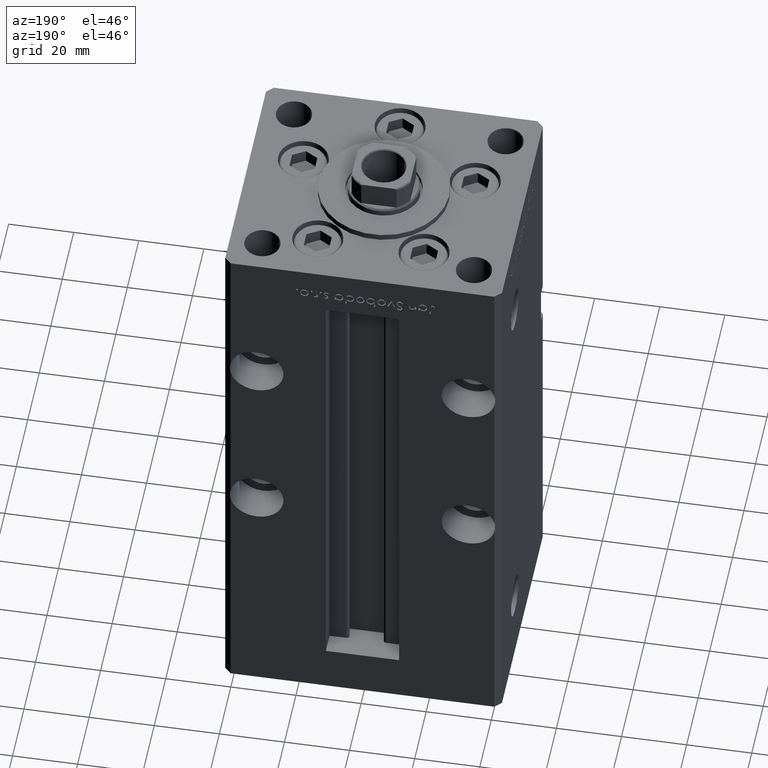
[diagram: clean part render]
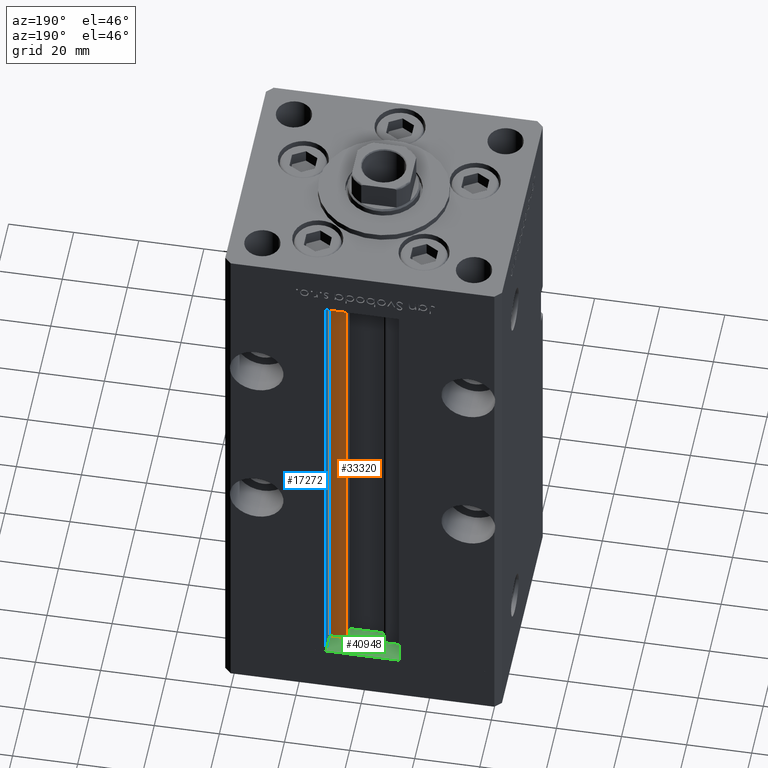
[diagram: same view with three faces highlighted in distinct colors, each labeled with its STEP entity id]
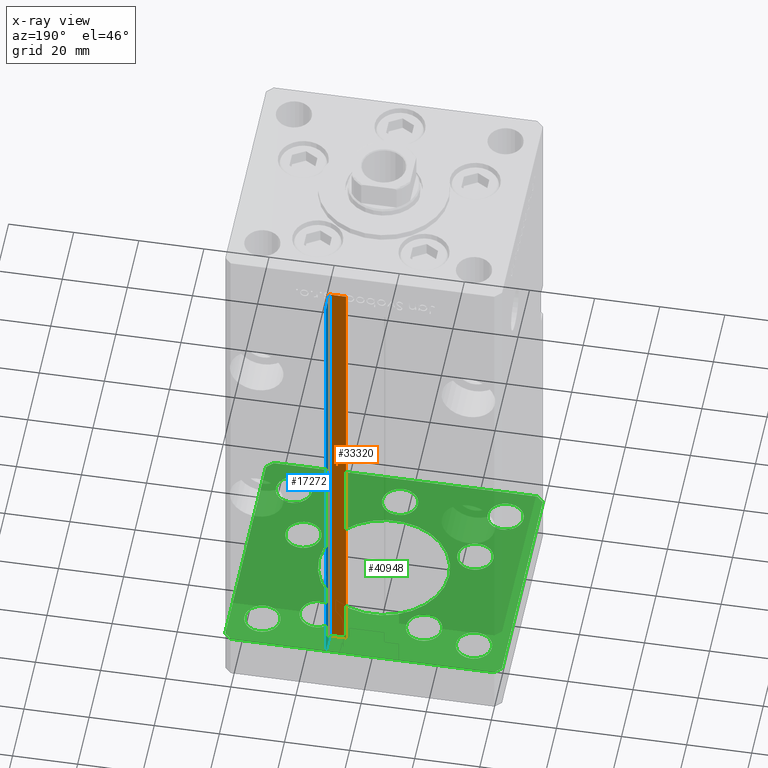
[diagram: x-ray of the same camera — body ghosted, the three highlighted faces saturated]
A machine part, auxiliary view with three faces highlighted in distinct colors.
The next image is the same camera in x-ray (body ghosted, the three faces saturated) — at least one of them is partly hidden behind the body in this view.
Their STEP definitions:

[orange] entity #33320 — the highlighted planar face has unit normal (0, -1, 0).
#1316 = EDGE_CURVE ( 'NONE', #27710, #24959, #51624, .T. ) ;
#1739 = CARTESIAN_POINT ( 'NONE',  ( 6.183333333333997928, 31.00000000000000000, 0.000000000000000000 ) ) ;
#5737 = FACE_OUTER_BOUND ( 'NONE', #50961, .T. ) ;
#6005 = CARTESIAN_POINT ( 'NONE',  ( 6.183333333333997928, 31.00000000000000000, 0.000000000000000000 ) ) ;
#8278 = LINE ( 'NONE', #24933, #51236 ) ;
#9111 = CARTESIAN_POINT ( 'NONE',  ( 6.183333333333997928, 31.00000000000000000, 0.000000000000000000 ) ) ;
#14141 = CARTESIAN_POINT ( 'NONE',  ( 11.24999999999999822, 31.00000000000000000, 148.5000000000000000 ) ) ;
#14553 = DIRECTION ( 'NONE',  ( -1.000000000000000000, 0.000000000000000000, 0.000000000000000000 ) ) ;
#18830 = LINE ( 'NONE', #19355, #45221 ) ;
#19355 = CARTESIAN_POINT ( 'NONE',  ( 0.000000000000000000, 31.00000000000000000, 148.5000000000000000 ) ) ;
#22226 = CARTESIAN_POINT ( 'NONE',  ( 6.183333333333997928, 31.00000000000000000, 148.5000000000000000 ) ) ;
#22421 = EDGE_CURVE ( 'NONE', #27710, #52181, #24698, .T. ) ;
#24698 = LINE ( 'NONE', #9111, #34763 ) ;
#24933 = CARTESIAN_POINT ( 'NONE',  ( 11.24999999999999822, 31.00000000000000000, 0.000000000000000000 ) ) ;
#24959 = VERTEX_POINT ( 'NONE', #42751 ) ;
#25493 = DIRECTION ( 'NONE',  ( -0.000000000000000000, -0.000000000000000000, 1.000000000000000000 ) ) ;
#26908 = EDGE_CURVE ( 'NONE', #42925, #52181, #18830, .T. ) ;
#27710 = VERTEX_POINT ( 'NONE', #1739 ) ;
#27934 = EDGE_CURVE ( 'NONE', #24959, #42925, #8278, .T. ) ;
#31174 = DIRECTION ( 'NONE',  ( 1.000000000000000000, 0.000000000000000000, 0.000000000000000000 ) ) ;
#33320 = ADVANCED_FACE ( 'NONE', ( #5737 ), #35031, .F. ) ;
#34763 = VECTOR ( 'NONE', #25493, 1000.000000000000000 ) ;
#35031 = PLANE ( 'NONE',  #41806 ) ;
#37675 = ORIENTED_EDGE ( 'NONE', *, *, #27934, .F. ) ;
#38459 = CARTESIAN_POINT ( 'NONE',  ( 6.183333333333997928, 31.00000000000000000, 0.000000000000000000 ) ) ;
#38539 = DIRECTION ( 'NONE',  ( 0.000000000000000000, -1.000000000000000000, 0.000000000000000000 ) ) ;
#39109 = ORIENTED_EDGE ( 'NONE', *, *, #22421, .T. ) ;
#41806 = AXIS2_PLACEMENT_3D ( 'NONE', #6005, #38539, #43627 ) ;
#42751 = CARTESIAN_POINT ( 'NONE',  ( 11.24999999999999822, 31.00000000000000000, 0.000000000000000000 ) ) ;
#42925 = VERTEX_POINT ( 'NONE', #14141 ) ;
#43458 = ORIENTED_EDGE ( 'NONE', *, *, #1316, .F. ) ;
#43627 = DIRECTION ( 'NONE',  ( 0.000000000000000000, -0.000000000000000000, -1.000000000000000000 ) ) ;
#45205 = VECTOR ( 'NONE', #31174, 1000.000000000000000 ) ;
#45221 = VECTOR ( 'NONE', #14553, 1000.000000000000000 ) ;
#48297 = ORIENTED_EDGE ( 'NONE', *, *, #26908, .F. ) ;
#48890 = DIRECTION ( 'NONE',  ( -0.000000000000000000, -0.000000000000000000, 1.000000000000000000 ) ) ;
#50961 = EDGE_LOOP ( 'NONE', ( #37675, #43458, #39109, #48297 ) ) ;
#51236 = VECTOR ( 'NONE', #48890, 1000.000000000000000 ) ;
#51624 = LINE ( 'NONE', #38459, #45205 ) ;
#52181 = VERTEX_POINT ( 'NONE', #22226 ) ;

[blue] entity #17272 — the highlighted planar face has unit normal (1, 0, 0).
#63 = EDGE_CURVE ( 'NONE', #24959, #36560, #31854, .T. ) ;
#1206 = VECTOR ( 'NONE', #1394, 1000.000000000000000 ) ;
#1394 = DIRECTION ( 'NONE',  ( -0.000000000000000000, -1.000000000000000000, 0.000000000000000000 ) ) ;
#3431 = VERTEX_POINT ( 'NONE', #48654 ) ;
#4443 = CARTESIAN_POINT ( 'NONE',  ( 11.24999999999999822, 37.50000000000000000, 0.000000000000000000 ) ) ;
#5339 = FACE_OUTER_BOUND ( 'NONE', #31491, .T. ) ;
#5604 = DIRECTION ( 'NONE',  ( 1.000000000000000000, -0.000000000000000000, 0.000000000000000000 ) ) ;
#8278 = LINE ( 'NONE', #24933, #51236 ) ;
#14141 = CARTESIAN_POINT ( 'NONE',  ( 11.24999999999999822, 31.00000000000000000, 148.5000000000000000 ) ) ;
#17272 = ADVANCED_FACE ( 'NONE', ( #5339 ), #20894, .F. ) ;
#17289 = DIRECTION ( 'NONE',  ( 0.000000000000000000, 1.000000000000000000, 0.000000000000000000 ) ) ;
#17927 = EDGE_CURVE ( 'NONE', #3431, #42925, #50845, .T. ) ;
#20894 = PLANE ( 'NONE',  #45771 ) ;
#21974 = DIRECTION ( 'NONE',  ( 0.000000000000000000, 0.000000000000000000, -1.000000000000000000 ) ) ;
#24455 = EDGE_CURVE ( 'NONE', #36560, #3431, #45555, .T. ) ;
#24933 = CARTESIAN_POINT ( 'NONE',  ( 11.24999999999999822, 31.00000000000000000, 0.000000000000000000 ) ) ;
#24959 = VERTEX_POINT ( 'NONE', #42751 ) ;
#27177 = VECTOR ( 'NONE', #17289, 1000.000000000000000 ) ;
#27934 = EDGE_CURVE ( 'NONE', #24959, #42925, #8278, .T. ) ;
#30136 = CARTESIAN_POINT ( 'NONE',  ( 11.24999999999999822, 0.000000000000000000, 148.5000000000000000 ) ) ;
#31491 = EDGE_LOOP ( 'NONE', ( #46404, #47482, #31547, #47127 ) ) ;
#31547 = ORIENTED_EDGE ( 'NONE', *, *, #27934, .T. ) ;
#31854 = LINE ( 'NONE', #48268, #27177 ) ;
#36560 = VERTEX_POINT ( 'NONE', #50884 ) ;
#41258 = DIRECTION ( 'NONE',  ( -0.000000000000000000, -0.000000000000000000, 1.000000000000000000 ) ) ;
#42425 = CARTESIAN_POINT ( 'NONE',  ( 11.24999999999999822, 31.00000000000000000, 0.000000000000000000 ) ) ;
#42751 = CARTESIAN_POINT ( 'NONE',  ( 11.24999999999999822, 31.00000000000000000, 0.000000000000000000 ) ) ;
#42925 = VERTEX_POINT ( 'NONE', #14141 ) ;
#45555 = LINE ( 'NONE', #4443, #51156 ) ;
#45771 = AXIS2_PLACEMENT_3D ( 'NONE', #42425, #5604, #21974 ) ;
#46404 = ORIENTED_EDGE ( 'NONE', *, *, #24455, .F. ) ;
#47127 = ORIENTED_EDGE ( 'NONE', *, *, #17927, .F. ) ;
#47482 = ORIENTED_EDGE ( 'NONE', *, *, #63, .F. ) ;
#48268 = CARTESIAN_POINT ( 'NONE',  ( 11.24999999999999822, 31.00000000000000000, 0.000000000000000000 ) ) ;
#48654 = CARTESIAN_POINT ( 'NONE',  ( 11.24999999999999112, 37.50000000000000000, 148.5000000000000000 ) ) ;
#48890 = DIRECTION ( 'NONE',  ( -0.000000000000000000, -0.000000000000000000, 1.000000000000000000 ) ) ;
#50845 = LINE ( 'NONE', #30136, #1206 ) ;
#50884 = CARTESIAN_POINT ( 'NONE',  ( 11.24999999999999822, 37.50000000000000000, 0.000000000000000000 ) ) ;
#51156 = VECTOR ( 'NONE', #41258, 1000.000000000000000 ) ;
#51236 = VECTOR ( 'NONE', #48890, 1000.000000000000000 ) ;

[green] entity #40948 — the highlighted planar face has unit normal (0, 0, -1).
#189 = DIRECTION ( 'NONE',  ( 1.000000000000000000, 0.000000000000000000, 0.000000000000000000 ) ) ;
#276 = AXIS2_PLACEMENT_3D ( 'NONE', #26455, #22942, #39367 ) ;
#350 = DIRECTION ( 'NONE',  ( -0.000000000000000000, -0.000000000000000000, -1.000000000000000000 ) ) ;
#872 = DIRECTION ( 'NONE',  ( 1.000000000000000000, 0.000000000000000000, 0.000000000000000000 ) ) ;
#1070 = LINE ( 'NONE', #13417, #24709 ) ;
#1185 = CARTESIAN_POINT ( 'NONE',  ( -32.50000000000000000, -27.49999999999999645, -15.00000000000000000 ) ) ;
#1464 = ORIENTED_EDGE ( 'NONE', *, *, #6223, .F. ) ;
#1497 = FACE_BOUND ( 'NONE', #18983, .T. ) ;
#1589 = EDGE_LOOP ( 'NONE', ( #30103, #4237 ) ) ;
#1746 = AXIS2_PLACEMENT_3D ( 'NONE', #26597, #5917, #9419 ) ;
#1956 = EDGE_CURVE ( 'NONE', #41763, #3522, #25517, .T. ) ;
#2480 = ORIENTED_EDGE ( 'NONE', *, *, #3192, .F. ) ;
#2605 = CARTESIAN_POINT ( 'NONE',  ( -40.50000000000000711, 37.49999999999997868, -15.00000000000000000 ) ) ;
#2631 = CIRCLE ( 'NONE', #48962, 5.499999999999998224 ) ;
#2823 = ORIENTED_EDGE ( 'NONE', *, *, #4851, .F. ) ;
#2935 = DIRECTION ( 'NONE',  ( 1.000000000000000000, 0.000000000000000000, 0.000000000000000000 ) ) ;
#2940 = LINE ( 'NONE', #31676, #35914 ) ;
#3021 = CARTESIAN_POINT ( 'NONE',  ( 26.39865316429776954, -9.333333333333330373, -15.00000000000000000 ) ) ;
#3119 = CARTESIAN_POINT ( 'NONE',  ( 26.39865316429776954, -9.333333333333330373, -15.00000000000000000 ) ) ;
#3192 = EDGE_CURVE ( 'NONE', #20481, #35383, #43609, .T. ) ;
#3522 = VERTEX_POINT ( 'NONE', #4818 ) ;
#3826 = VERTEX_POINT ( 'NONE', #12993 ) ;
#4237 = ORIENTED_EDGE ( 'NONE', *, *, #1956, .F. ) ;
#4629 = DIRECTION ( 'NONE',  ( 0.000000000000000000, -0.000000000000000000, -1.000000000000000000 ) ) ;
#4818 = CARTESIAN_POINT ( 'NONE',  ( -27.00000000000000355, -27.49999999999999645, -15.00000000000000000 ) ) ;
#4851 = EDGE_CURVE ( 'NONE', #5308, #35463, #1070, .T. ) ;
#4943 = CIRCLE ( 'NONE', #45258, 5.500000000000000000 ) ;
#5174 = DIRECTION ( 'NONE',  ( 0.7071067811865474617, 0.7071067811865474617, 0.000000000000000000 ) ) ;
#5231 = EDGE_CURVE ( 'NONE', #44723, #43387, #29002, .T. ) ;
#5308 = VERTEX_POINT ( 'NONE', #24839 ) ;
#5442 = ORIENTED_EDGE ( 'NONE', *, *, #10456, .F. ) ;
#5475 = ORIENTED_EDGE ( 'NONE', *, *, #37689, .F. ) ;
#5588 = CARTESIAN_POINT ( 'NONE',  ( -32.50000000000000000, 27.50000000000000355, -15.00000000000000000 ) ) ;
#5779 = FACE_BOUND ( 'NONE', #37684, .T. ) ;
#5806 = AXIS2_PLACEMENT_3D ( 'NONE', #3119, #19483, #48270 ) ;
#5917 = DIRECTION ( 'NONE',  ( -0.000000000000000000, -0.000000000000000000, -1.000000000000000000 ) ) ;
#6046 = CARTESIAN_POINT ( 'NONE',  ( 0.000000000000000000, 0.000000000000000000, -15.00000000000000000 ) ) ;
#6178 = VERTEX_POINT ( 'NONE', #28616 ) ;
#6223 = EDGE_CURVE ( 'NONE', #3826, #46836, #48819, .T. ) ;
#6317 = FACE_BOUND ( 'NONE', #37904, .T. ) ;
#7144 = DIRECTION ( 'NONE',  ( 0.000000000000000000, 0.000000000000000000, 1.000000000000000000 ) ) ;
#7664 = ORIENTED_EDGE ( 'NONE', *, *, #46384, .F. ) ;
#7747 = ORIENTED_EDGE ( 'NONE', *, *, #44006, .F. ) ;
#8046 = CARTESIAN_POINT ( 'NONE',  ( 3.429011037612589276E-15, -28.00000000000000000, -15.00000000000000000 ) ) ;
#8143 = ORIENTED_EDGE ( 'NONE', *, *, #47008, .F. ) ;
#8237 = CARTESIAN_POINT ( 'NONE',  ( -16.32291334290543006, 22.74999999999999645, -15.00000000000000000 ) ) ;
#9419 = DIRECTION ( 'NONE',  ( -1.000000000000000000, 0.000000000000000000, 0.000000000000000000 ) ) ;
#9430 = DIRECTION ( 'NONE',  ( 0.000000000000000000, -0.000000000000000000, -1.000000000000000000 ) ) ;
#9442 = VECTOR ( 'NONE', #35799, 1000.000000000000000 ) ;
#9990 = LINE ( 'NONE', #18574, #45449 ) ;
#10306 = VERTEX_POINT ( 'NONE', #46489 ) ;
#10456 = EDGE_CURVE ( 'NONE', #17768, #39096, #38848, .T. ) ;
#10532 = EDGE_LOOP ( 'NONE', ( #45422, #40455, #7664, #2823, #13260, #32159, #32257, #8143 ) ) ;
#10852 = EDGE_CURVE ( 'NONE', #17774, #29412, #15690, .T. ) ;
#11170 = ORIENTED_EDGE ( 'NONE', *, *, #50082, .F. ) ;
#11454 = CARTESIAN_POINT ( 'NONE',  ( -32.50000000000000000, 27.50000000000000355, -15.00000000000000000 ) ) ;
#11621 = EDGE_LOOP ( 'NONE', ( #7747, #52463 ) ) ;
#11893 = CIRCLE ( 'NONE', #18742, 5.500000000000001776 ) ;
#12372 = VERTEX_POINT ( 'NONE', #17715 ) ;
#12505 = DIRECTION ( 'NONE',  ( -0.000000000000000000, -0.000000000000000000, -1.000000000000000000 ) ) ;
#12573 = VERTEX_POINT ( 'NONE', #13634 ) ;
#12714 = CARTESIAN_POINT ( 'NONE',  ( -32.50000000000000000, -27.49999999999999645, -15.00000000000000000 ) ) ;
#12993 = CARTESIAN_POINT ( 'NONE',  ( 20.00000000000000000, 0.000000000000000000, -15.00000000000000000 ) ) ;
#13073 = EDGE_CURVE ( 'NONE', #12372, #30289, #16549, .T. ) ;
#13260 = ORIENTED_EDGE ( 'NONE', *, *, #39293, .F. ) ;
#13298 = CARTESIAN_POINT ( 'NONE',  ( 0.000000000000000000, 0.000000000000000000, -15.00000000000000000 ) ) ;
#13367 = EDGE_LOOP ( 'NONE', ( #26973, #5475 ) ) ;
#13417 = CARTESIAN_POINT ( 'NONE',  ( 40.49999999999991473, 37.50000000000000711, -15.00000000000000000 ) ) ;
#13634 = CARTESIAN_POINT ( 'NONE',  ( 38.00000000000000000, -27.49999999999999645, -15.00000000000000000 ) ) ;
#13976 = AXIS2_PLACEMENT_3D ( 'NONE', #3021, #32727, #16847 ) ;
#14391 = CIRCLE ( 'NONE', #20375, 20.00000000000000000 ) ;
#14497 = DIRECTION ( 'NONE',  ( 1.000000000000000000, 0.000000000000000000, 0.000000000000000000 ) ) ;
#15143 = EDGE_CURVE ( 'NONE', #35383, #20481, #52619, .T. ) ;
#15620 = ORIENTED_EDGE ( 'NONE', *, *, #5231, .T. ) ;
#15637 = VERTEX_POINT ( 'NONE', #50407 ) ;
#15666 = CARTESIAN_POINT ( 'NONE',  ( 5.500000000000003553, -28.00000000000000000, -15.00000000000000000 ) ) ;
#15690 = CIRCLE ( 'NONE', #18259, 5.500000000000000000 ) ;
#15858 = ORIENTED_EDGE ( 'NONE', *, *, #33867, .F. ) ;
#16549 = CIRCLE ( 'NONE', #276, 5.499999999999998224 ) ;
#16677 = CARTESIAN_POINT ( 'NONE',  ( 32.50000000000000000, 27.49999999999999645, -15.00000000000000000 ) ) ;
#16734 = CARTESIAN_POINT ( 'NONE',  ( -42.50000000000000000, -35.50000000000000711, -15.00000000000000000 ) ) ;
#16847 = DIRECTION ( 'NONE',  ( 1.000000000000000000, 0.000000000000000000, 0.000000000000000000 ) ) ;
#17234 = DIRECTION ( 'NONE',  ( 0.000000000000000000, -0.000000000000000000, -1.000000000000000000 ) ) ;
#17433 = DIRECTION ( 'NONE',  ( -1.000000000000000000, -3.426614273534436165E-16, 0.000000000000000000 ) ) ;
#17460 = ORIENTED_EDGE ( 'NONE', *, *, #38391, .T. ) ;
#17545 = DIRECTION ( 'NONE',  ( -0.000000000000000000, -0.000000000000000000, -1.000000000000000000 ) ) ;
#17715 = CARTESIAN_POINT ( 'NONE',  ( -20.89865316429777309, -9.333333333333337478, -15.00000000000000000 ) ) ;
#17768 = VERTEX_POINT ( 'NONE', #36352 ) ;
#17774 = VERTEX_POINT ( 'NONE', #53009 ) ;
#17991 = CIRCLE ( 'NONE', #27436, 5.499999999999998224 ) ;
#18259 = AXIS2_PLACEMENT_3D ( 'NONE', #43587, #22333, #34991 ) ;
#18351 = DIRECTION ( 'NONE',  ( -1.000000000000000000, 0.000000000000000000, 0.000000000000000000 ) ) ;
#18574 = CARTESIAN_POINT ( 'NONE',  ( 42.49999999999992895, 35.50000000000000000, -15.00000000000000000 ) ) ;
#18742 = AXIS2_PLACEMENT_3D ( 'NONE', #46758, #42718, #14497 ) ;
#18790 = AXIS2_PLACEMENT_3D ( 'NONE', #8237, #37005, #189 ) ;
#18861 = CARTESIAN_POINT ( 'NONE',  ( -40.49999999999999289, -37.50000000000002132, -15.00000000000000000 ) ) ;
#18963 = DIRECTION ( 'NONE',  ( 1.000000000000000000, 0.000000000000000000, 0.000000000000000000 ) ) ;
#18983 = EDGE_LOOP ( 'NONE', ( #1464, #50881 ) ) ;
#19151 = CARTESIAN_POINT ( 'NONE',  ( -10.82291334290543183, 22.74999999999999645, -15.00000000000000000 ) ) ;
#19431 = AXIS2_PLACEMENT_3D ( 'NONE', #38878, #7144, #18963 ) ;
#19483 = DIRECTION ( 'NONE',  ( 0.000000000000000000, -0.000000000000000000, -1.000000000000000000 ) ) ;
#19967 = CARTESIAN_POINT ( 'NONE',  ( -42.50000000000000711, 35.49999999999997158, -15.00000000000000000 ) ) ;
#20212 = ORIENTED_EDGE ( 'NONE', *, *, #15143, .F. ) ;
#20292 = VECTOR ( 'NONE', #5174, 1000.000000000000114 ) ;
#20359 = CARTESIAN_POINT ( 'NONE',  ( 40.50000000000000000, -37.50000000000000711, -15.00000000000000000 ) ) ;
#20375 = AXIS2_PLACEMENT_3D ( 'NONE', #41447, #4629, #20989 ) ;
#20481 = VERTEX_POINT ( 'NONE', #30501 ) ;
#20989 = DIRECTION ( 'NONE',  ( 1.000000000000000000, 0.000000000000000000, 0.000000000000000000 ) ) ;
#21007 = DIRECTION ( 'NONE',  ( -1.000000000000000000, 0.000000000000000000, 0.000000000000000000 ) ) ;
#21022 = LINE ( 'NONE', #16734, #36445 ) ;
#21434 = EDGE_CURVE ( 'NONE', #30836, #41826, #21022, .T. ) ;
#21504 = DIRECTION ( 'NONE',  ( 1.000000000000000000, 0.000000000000000000, 0.000000000000000000 ) ) ;
#21888 = FACE_BOUND ( 'NONE', #13367, .T. ) ;
#22311 = VECTOR ( 'NONE', #45235, 1000.000000000000000 ) ;
#22333 = DIRECTION ( 'NONE',  ( 0.000000000000000000, -0.000000000000000000, -1.000000000000000000 ) ) ;
#22336 = LINE ( 'NONE', #38765, #20292 ) ;
#22874 = VERTEX_POINT ( 'NONE', #31792 ) ;
#22942 = DIRECTION ( 'NONE',  ( 0.000000000000000000, -0.000000000000000000, -1.000000000000000000 ) ) ;
#23096 = DIRECTION ( 'NONE',  ( -0.7071067811865463515, -0.7071067811865487940, 0.000000000000000000 ) ) ;
#23111 = EDGE_LOOP ( 'NONE', ( #20212, #2480 ) ) ;
#23113 = AXIS2_PLACEMENT_3D ( 'NONE', #16677, #25289, #37136 ) ;
#23707 = CARTESIAN_POINT ( 'NONE',  ( -38.00000000000000000, 27.50000000000000355, -15.00000000000000000 ) ) ;
#23903 = AXIS2_PLACEMENT_3D ( 'NONE', #13298, #29676, #25111 ) ;
#24431 = EDGE_CURVE ( 'NONE', #51676, #12573, #32256, .T. ) ;
#24532 = CARTESIAN_POINT ( 'NONE',  ( -31.89865316429776954, -9.333333333333337478, -15.00000000000000000 ) ) ;
#24709 = VECTOR ( 'NONE', #17433, 1000.000000000000000 ) ;
#24839 = CARTESIAN_POINT ( 'NONE',  ( 40.49999999999991473, 37.50000000000000711, -15.00000000000000000 ) ) ;
#24880 = CIRCLE ( 'NONE', #1746, 5.499999999999998224 ) ;
#25111 = DIRECTION ( 'NONE',  ( 1.000000000000000000, 0.000000000000000000, 0.000000000000000000 ) ) ;
#25289 = DIRECTION ( 'NONE',  ( 0.000000000000000000, 0.000000000000000000, 1.000000000000000000 ) ) ;
#25517 = CIRCLE ( 'NONE', #46987, 5.499999999999998224 ) ;
#25741 = CARTESIAN_POINT ( 'NONE',  ( -40.49999999999999289, -37.50000000000002132, -15.00000000000000000 ) ) ;
#26455 = CARTESIAN_POINT ( 'NONE',  ( -26.39865316429776954, -9.333333333333337478, -15.00000000000000000 ) ) ;
#26461 = CARTESIAN_POINT ( 'NONE',  ( 27.00000000000000355, -27.49999999999999645, -15.00000000000000000 ) ) ;
#26463 = FACE_BOUND ( 'NONE', #23111, .T. ) ;
#26499 = EDGE_LOOP ( 'NONE', ( #43255, #11170 ) ) ;
#26597 = CARTESIAN_POINT ( 'NONE',  ( 32.50000000000000000, -27.49999999999999645, -15.00000000000000000 ) ) ;
#26973 = ORIENTED_EDGE ( 'NONE', *, *, #13073, .F. ) ;
#27384 = AXIS2_PLACEMENT_3D ( 'NONE', #41950, #9430, #21504 ) ;
#27436 = AXIS2_PLACEMENT_3D ( 'NONE', #12714, #350, #21007 ) ;
#27490 = EDGE_CURVE ( 'NONE', #22874, #31324, #34063, .T. ) ;
#27903 = CARTESIAN_POINT ( 'NONE',  ( 42.49999999999992895, 35.50000000000000000, -15.00000000000000000 ) ) ;
#27915 = VERTEX_POINT ( 'NONE', #20359 ) ;
#27962 = CARTESIAN_POINT ( 'NONE',  ( -42.50000000000000000, -35.50000000000000711, -15.00000000000000000 ) ) ;
#28540 = AXIS2_PLACEMENT_3D ( 'NONE', #31930, #39744, #2935 ) ;
#28616 = CARTESIAN_POINT ( 'NONE',  ( 10.82291334290542473, 22.75000000000000000, -15.00000000000000000 ) ) ;
#28822 = CARTESIAN_POINT ( 'NONE',  ( -42.50000000000000711, 35.49999999999997158, -15.00000000000000000 ) ) ;
#29002 = CIRCLE ( 'NONE', #38473, 5.499999999999998224 ) ;
#29145 = CARTESIAN_POINT ( 'NONE',  ( 32.50000000000000000, -27.49999999999999645, -15.00000000000000000 ) ) ;
#29412 = VERTEX_POINT ( 'NONE', #19151 ) ;
#29676 = DIRECTION ( 'NONE',  ( 0.000000000000000000, -0.000000000000000000, -1.000000000000000000 ) ) ;
#29947 = CIRCLE ( 'NONE', #27384, 5.499999999999998224 ) ;
#30103 = ORIENTED_EDGE ( 'NONE', *, *, #45066, .F. ) ;
#30154 = AXIS2_PLACEMENT_3D ( 'NONE', #37694, #17234, #872 ) ;
#30282 = CARTESIAN_POINT ( 'NONE',  ( 31.89865316429776954, -9.333333333333330373, -15.00000000000000000 ) ) ;
#30289 = VERTEX_POINT ( 'NONE', #24532 ) ;
#30501 = CARTESIAN_POINT ( 'NONE',  ( 20.89865316429777309, -9.333333333333330373, -15.00000000000000000 ) ) ;
#30566 = DIRECTION ( 'NONE',  ( 0.000000000000000000, 0.000000000000000000, 1.000000000000000000 ) ) ;
#30651 = EDGE_CURVE ( 'NONE', #46836, #3826, #14391, .T. ) ;
#30836 = VERTEX_POINT ( 'NONE', #27962 ) ;
#30871 = AXIS2_PLACEMENT_3D ( 'NONE', #6046, #46903, #39103 ) ;
#31324 = VERTEX_POINT ( 'NONE', #42585 ) ;
#31415 = AXIS2_PLACEMENT_3D ( 'NONE', #29145, #12505, #33453 ) ;
#31676 = CARTESIAN_POINT ( 'NONE',  ( 42.50000000000000711, -35.50000000000000000, -15.00000000000000000 ) ) ;
#31739 = EDGE_CURVE ( 'NONE', #27915, #15637, #22336, .T. ) ;
#31792 = CARTESIAN_POINT ( 'NONE',  ( 27.00000000000000355, 27.49999999999999645, -15.00000000000000000 ) ) ;
#31882 = CARTESIAN_POINT ( 'NONE',  ( -27.00000000000000355, 27.50000000000000355, -15.00000000000000000 ) ) ;
#31930 = CARTESIAN_POINT ( 'NONE',  ( 3.429011037612589276E-15, -28.00000000000000000, -15.00000000000000000 ) ) ;
#32159 = ORIENTED_EDGE ( 'NONE', *, *, #36112, .F. ) ;
#32256 = CIRCLE ( 'NONE', #31415, 5.499999999999998224 ) ;
#32257 = ORIENTED_EDGE ( 'NONE', *, *, #31739, .F. ) ;
#32361 = ORIENTED_EDGE ( 'NONE', *, *, #47550, .T. ) ;
#32727 = DIRECTION ( 'NONE',  ( 0.000000000000000000, -0.000000000000000000, -1.000000000000000000 ) ) ;
#33453 = DIRECTION ( 'NONE',  ( -1.000000000000000000, 0.000000000000000000, 0.000000000000000000 ) ) ;
#33867 = EDGE_CURVE ( 'NONE', #39096, #17768, #4943, .T. ) ;
#34063 = CIRCLE ( 'NONE', #19431, 5.499999999999998224 ) ;
#34804 = FACE_BOUND ( 'NONE', #51158, .T. ) ;
#34991 = DIRECTION ( 'NONE',  ( 1.000000000000000000, 0.000000000000000000, 0.000000000000000000 ) ) ;
#35073 = FACE_BOUND ( 'NONE', #45623, .T. ) ;
#35383 = VERTEX_POINT ( 'NONE', #30282 ) ;
#35463 = VERTEX_POINT ( 'NONE', #2605 ) ;
#35799 = DIRECTION ( 'NONE',  ( 1.000000000000000000, 1.713307136767217096E-16, 0.000000000000000000 ) ) ;
#35914 = VECTOR ( 'NONE', #48080, 1000.000000000000000 ) ;
#35930 = EDGE_CURVE ( 'NONE', #10306, #6178, #11893, .T. ) ;
#36112 = EDGE_CURVE ( 'NONE', #15637, #39651, #2940, .T. ) ;
#36352 = CARTESIAN_POINT ( 'NONE',  ( -5.499999999999996447, -28.00000000000000000, -15.00000000000000000 ) ) ;
#36445 = VECTOR ( 'NONE', #42021, 1000.000000000000000 ) ;
#37005 = DIRECTION ( 'NONE',  ( 0.000000000000000000, -0.000000000000000000, -1.000000000000000000 ) ) ;
#37136 = DIRECTION ( 'NONE',  ( 1.000000000000000000, 0.000000000000000000, 0.000000000000000000 ) ) ;
#37684 = EDGE_LOOP ( 'NONE', ( #15620, #32361 ) ) ;
#37689 = EDGE_CURVE ( 'NONE', #30289, #12372, #29947, .T. ) ;
#37694 = CARTESIAN_POINT ( 'NONE',  ( 16.32291334290542295, 22.75000000000000000, -15.00000000000000000 ) ) ;
#37904 = EDGE_LOOP ( 'NONE', ( #17460, #42564 ) ) ;
#37916 = CIRCLE ( 'NONE', #30154, 5.500000000000001776 ) ;
#37994 = ORIENTED_EDGE ( 'NONE', *, *, #47249, .F. ) ;
#38391 = EDGE_CURVE ( 'NONE', #31324, #22874, #52341, .T. ) ;
#38473 = AXIS2_PLACEMENT_3D ( 'NONE', #11454, #39414, #39935 ) ;
#38765 = CARTESIAN_POINT ( 'NONE',  ( 40.50000000000000000, -37.50000000000000711, -15.00000000000000000 ) ) ;
#38848 = CIRCLE ( 'NONE', #28540, 5.500000000000000000 ) ;
#38878 = CARTESIAN_POINT ( 'NONE',  ( 32.50000000000000000, 27.49999999999999645, -15.00000000000000000 ) ) ;
#38906 = CARTESIAN_POINT ( 'NONE',  ( -20.00000000000000000, 2.449293598294706513E-15, -15.00000000000000000 ) ) ;
#39096 = VERTEX_POINT ( 'NONE', #15666 ) ;
#39103 = DIRECTION ( 'NONE',  ( 1.000000000000000000, 0.000000000000000000, 0.000000000000000000 ) ) ;
#39248 = LINE ( 'NONE', #47845, #42056 ) ;
#39293 = EDGE_CURVE ( 'NONE', #39651, #5308, #9990, .T. ) ;
#39367 = DIRECTION ( 'NONE',  ( 1.000000000000000000, 0.000000000000000000, 0.000000000000000000 ) ) ;
#39375 = FACE_BOUND ( 'NONE', #1589, .T. ) ;
#39414 = DIRECTION ( 'NONE',  ( 0.000000000000000000, 0.000000000000000000, 1.000000000000000000 ) ) ;
#39651 = VERTEX_POINT ( 'NONE', #27903 ) ;
#39744 = DIRECTION ( 'NONE',  ( 0.000000000000000000, -0.000000000000000000, -1.000000000000000000 ) ) ;
#39935 = DIRECTION ( 'NONE',  ( 1.000000000000000000, 0.000000000000000000, 0.000000000000000000 ) ) ;
#40455 = ORIENTED_EDGE ( 'NONE', *, *, #46916, .F. ) ;
#40948 = ADVANCED_FACE ( 'NONE', ( #1497, #21888, #35073, #26463, #51478, #42876, #6317, #5779, #46649, #34804, #39375 ), #51210, .F. ) ;
#41447 = CARTESIAN_POINT ( 'NONE',  ( 0.000000000000000000, 0.000000000000000000, -15.00000000000000000 ) ) ;
#41763 = VERTEX_POINT ( 'NONE', #48896 ) ;
#41826 = VERTEX_POINT ( 'NONE', #25741 ) ;
#41950 = CARTESIAN_POINT ( 'NONE',  ( -26.39865316429776954, -9.333333333333337478, -15.00000000000000000 ) ) ;
#42021 = DIRECTION ( 'NONE',  ( 0.7071067811865463515, -0.7071067811865487940, 0.000000000000000000 ) ) ;
#42056 = VECTOR ( 'NONE', #23096, 1000.000000000000000 ) ;
#42145 = DIRECTION ( 'NONE',  ( 1.000000000000000000, 0.000000000000000000, 0.000000000000000000 ) ) ;
#42564 = ORIENTED_EDGE ( 'NONE', *, *, #27490, .T. ) ;
#42585 = CARTESIAN_POINT ( 'NONE',  ( 38.00000000000000000, 27.49999999999999645, -15.00000000000000000 ) ) ;
#42718 = DIRECTION ( 'NONE',  ( 0.000000000000000000, -0.000000000000000000, -1.000000000000000000 ) ) ;
#42789 = DIRECTION ( 'NONE',  ( -0.7071067811865474617, 0.7071067811865474617, 0.000000000000000000 ) ) ;
#42876 = FACE_BOUND ( 'NONE', #11621, .T. ) ;
#43255 = ORIENTED_EDGE ( 'NONE', *, *, #35930, .F. ) ;
#43387 = VERTEX_POINT ( 'NONE', #23707 ) ;
#43587 = CARTESIAN_POINT ( 'NONE',  ( -16.32291334290543006, 22.74999999999999645, -15.00000000000000000 ) ) ;
#43609 = CIRCLE ( 'NONE', #5806, 5.499999999999998224 ) ;
#44006 = EDGE_CURVE ( 'NONE', #29412, #17774, #46281, .T. ) ;
#44485 = ORIENTED_EDGE ( 'NONE', *, *, #24431, .F. ) ;
#44723 = VERTEX_POINT ( 'NONE', #31882 ) ;
#45066 = EDGE_CURVE ( 'NONE', #3522, #41763, #17991, .T. ) ;
#45235 = DIRECTION ( 'NONE',  ( 9.773090005503140331E-17, -1.000000000000000000, 0.000000000000000000 ) ) ;
#45258 = AXIS2_PLACEMENT_3D ( 'NONE', #8046, #52690, #52169 ) ;
#45422 = ORIENTED_EDGE ( 'NONE', *, *, #21434, .F. ) ;
#45449 = VECTOR ( 'NONE', #42789, 1000.000000000000114 ) ;
#45623 = EDGE_LOOP ( 'NONE', ( #15858, #5442 ) ) ;
#45772 = LINE ( 'NONE', #28822, #22311 ) ;
#46281 = CIRCLE ( 'NONE', #18790, 5.500000000000000000 ) ;
#46384 = EDGE_CURVE ( 'NONE', #35463, #51787, #39248, .T. ) ;
#46489 = CARTESIAN_POINT ( 'NONE',  ( 21.82291334290542650, 22.75000000000000000, -15.00000000000000000 ) ) ;
#46649 = FACE_OUTER_BOUND ( 'NONE', #10532, .T. ) ;
#46758 = CARTESIAN_POINT ( 'NONE',  ( 16.32291334290542295, 22.75000000000000000, -15.00000000000000000 ) ) ;
#46836 = VERTEX_POINT ( 'NONE', #38906 ) ;
#46903 = DIRECTION ( 'NONE',  ( -0.000000000000000000, 0.000000000000000000, 1.000000000000000000 ) ) ;
#46916 = EDGE_CURVE ( 'NONE', #51787, #30836, #45772, .T. ) ;
#46987 = AXIS2_PLACEMENT_3D ( 'NONE', #1185, #17545, #18351 ) ;
#47008 = EDGE_CURVE ( 'NONE', #41826, #27915, #48169, .T. ) ;
#47249 = EDGE_CURVE ( 'NONE', #12573, #51676, #24880, .T. ) ;
#47550 = EDGE_CURVE ( 'NONE', #43387, #44723, #2631, .T. ) ;
#47845 = CARTESIAN_POINT ( 'NONE',  ( -40.50000000000000711, 37.49999999999997868, -15.00000000000000000 ) ) ;
#48080 = DIRECTION ( 'NONE',  ( -1.172770800660376741E-15, 1.000000000000000000, 0.000000000000000000 ) ) ;
#48169 = LINE ( 'NONE', #18861, #9442 ) ;
#48270 = DIRECTION ( 'NONE',  ( 1.000000000000000000, 0.000000000000000000, 0.000000000000000000 ) ) ;
#48819 = CIRCLE ( 'NONE', #23903, 20.00000000000000000 ) ;
#48896 = CARTESIAN_POINT ( 'NONE',  ( -38.00000000000000000, -27.49999999999999645, -15.00000000000000000 ) ) ;
#48962 = AXIS2_PLACEMENT_3D ( 'NONE', #5588, #30566, #42145 ) ;
#50082 = EDGE_CURVE ( 'NONE', #6178, #10306, #37916, .T. ) ;
#50407 = CARTESIAN_POINT ( 'NONE',  ( 42.50000000000000711, -35.50000000000000000, -15.00000000000000000 ) ) ;
#50881 = ORIENTED_EDGE ( 'NONE', *, *, #30651, .F. ) ;
#51158 = EDGE_LOOP ( 'NONE', ( #37994, #44485 ) ) ;
#51210 = PLANE ( 'NONE',  #30871 ) ;
#51478 = FACE_BOUND ( 'NONE', #26499, .T. ) ;
#51676 = VERTEX_POINT ( 'NONE', #26461 ) ;
#51787 = VERTEX_POINT ( 'NONE', #19967 ) ;
#52169 = DIRECTION ( 'NONE',  ( 1.000000000000000000, 0.000000000000000000, 0.000000000000000000 ) ) ;
#52341 = CIRCLE ( 'NONE', #23113, 5.499999999999998224 ) ;
#52463 = ORIENTED_EDGE ( 'NONE', *, *, #10852, .F. ) ;
#52619 = CIRCLE ( 'NONE', #13976, 5.499999999999998224 ) ;
#52690 = DIRECTION ( 'NONE',  ( 0.000000000000000000, -0.000000000000000000, -1.000000000000000000 ) ) ;
#53009 = CARTESIAN_POINT ( 'NONE',  ( -21.82291334290543361, 22.74999999999999645, -15.00000000000000000 ) ) ;